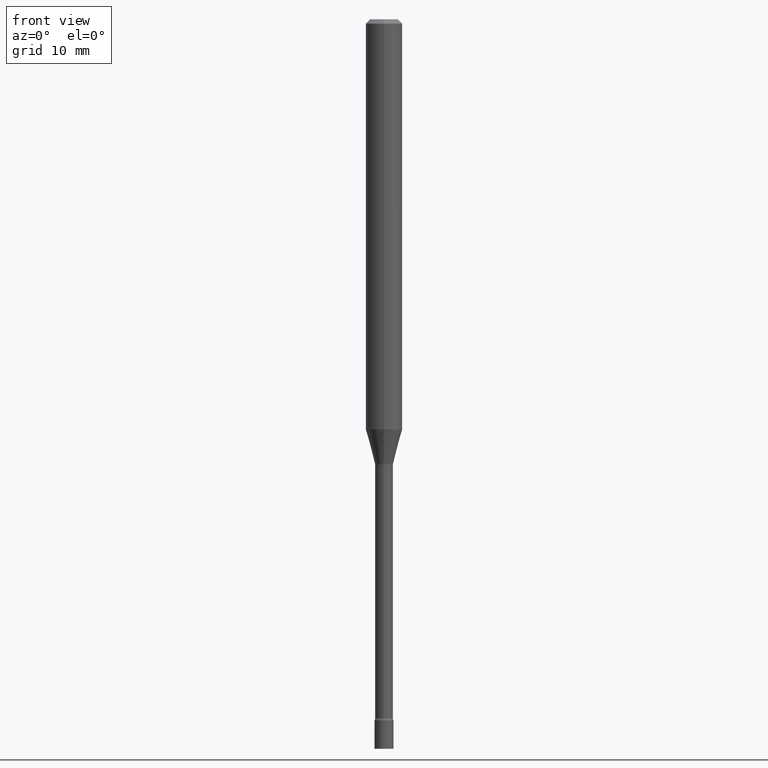
[diagram: clean part render]
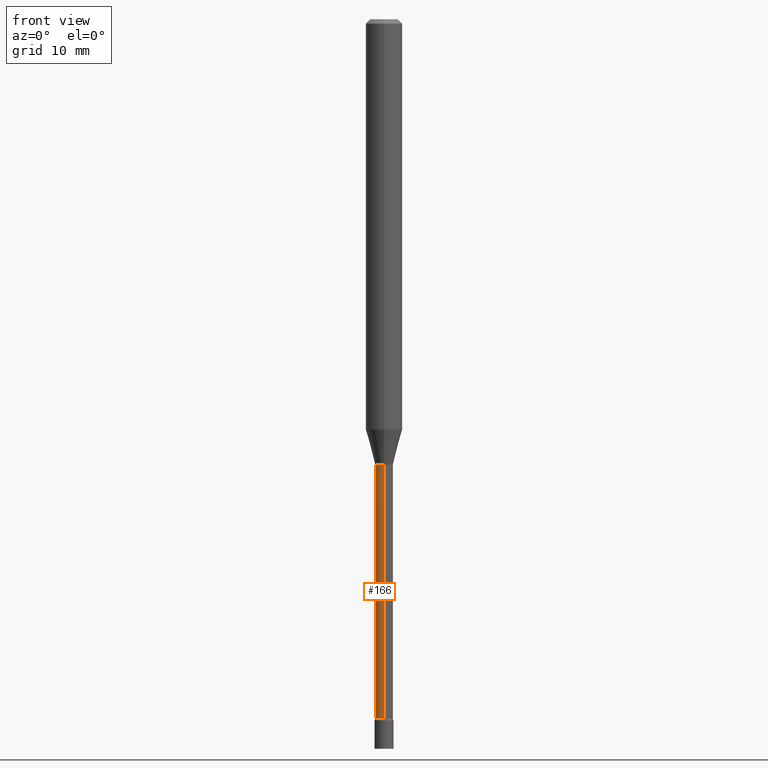
[diagram: same view with one face highlighted and labeled with its STEP entity id]
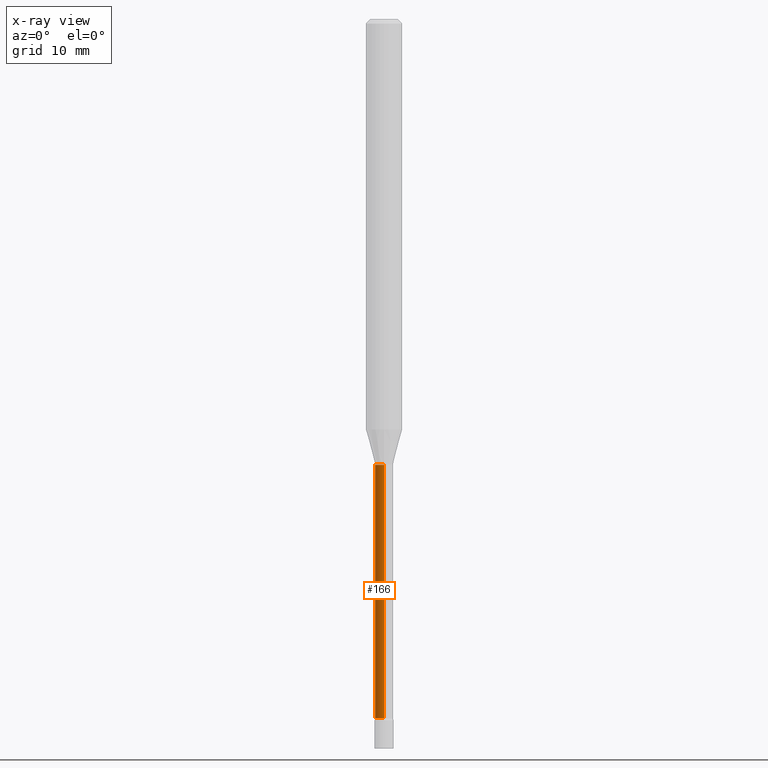
[diagram: x-ray of the same camera — body ghosted, the highlighted face saturated]
A machine part, front view. The second image highlights one B-rep face of the part: STEP entity #166.
The next image is the same camera in x-ray: the body ghosted, the highlighted face saturated — about 0% of this face is hidden behind the body in this view.
In plain terms, the highlighted cylindrical surface (edge-blend (fillet) strip) has radius 0.776 mm, axis along (-0, 0, 1).
Its self-contained STEP definition (entity closure, byte-faithful):
#25 = FACE_OUTER_BOUND ( 'NONE', #496, .T. ) ;
#50 = VERTEX_POINT ( 'NONE', #497 ) ;
#61 = LINE ( 'NONE', #358, #193 ) ;
#62 = VERTEX_POINT ( 'NONE', #350 ) ;
#77 = AXIS2_PLACEMENT_3D ( 'NONE', #304, #112, #115 ) ;
#79 = LINE ( 'NONE', #392, #474 ) ;
#91 = ORIENTED_EDGE ( 'NONE', *, *, #145, .F. ) ;
#112 = DIRECTION ( 'NONE',  ( -2.445462509514312655E-29, 3.491490356034149509E-15, 1.000000000000000000 ) ) ;
#115 = DIRECTION ( 'NONE',  ( -6.982962677686265922E-15, -1.000000000000000000, 0.000000000000000000 ) ) ;
#130 = VERTEX_POINT ( 'NONE', #316 ) ;
#134 = ORIENTED_EDGE ( 'NONE', *, *, #262, .F. ) ;
#136 = DIRECTION ( 'NONE',  ( -2.445462509514312655E-29, 3.491490356034149509E-15, 1.000000000000000000 ) ) ;
#145 = EDGE_CURVE ( 'NONE', #62, #50, #248, .T. ) ;
#153 = CARTESIAN_POINT ( 'NONE',  ( 3.734159595716336205E-29, -5.331417744337191746E-15, -1.526974787463811323 ) ) ;
#166 = ADVANCED_FACE ( 'NONE', ( #25 ), #320, .T. ) ;
#193 = VECTOR ( 'NONE', #348, 39.37007874015748143 ) ;
#194 = DIRECTION ( 'NONE',  ( -6.982962677686265133E-15, -1.000000000000000000, 0.000000000000000000 ) ) ;
#206 = AXIS2_PLACEMENT_3D ( 'NONE', #153, #394, #194 ) ;
#242 = CARTESIAN_POINT ( 'NONE',  ( 0.000000000000000000, 0.000000000000000000, 0.000000000000000000 ) ) ;
#247 = ORIENTED_EDGE ( 'NONE', *, *, #277, .T. ) ;
#248 = CIRCLE ( 'NONE', #206, 0.03055000000000000077 ) ;
#262 = EDGE_CURVE ( 'NONE', #375, #62, #79, .T. ) ;
#277 = EDGE_CURVE ( 'NONE', #130, #50, #61, .T. ) ;
#304 = CARTESIAN_POINT ( 'NONE',  ( 5.855914855353441094E-29, -8.360737555238315567E-15, -2.394604224178627838 ) ) ;
#310 = AXIS2_PLACEMENT_3D ( 'NONE', #242, #356, #479 ) ;
#316 = CARTESIAN_POINT ( 'NONE',  ( -2.133295098032572737E-16, -0.03055000000000842111, -2.394604224178627838 ) ) ;
#320 = CYLINDRICAL_SURFACE ( 'NONE', #310, 0.03055000000000002852 ) ;
#348 = DIRECTION ( 'NONE',  ( -2.445462509514312655E-29, 3.491490356034149509E-15, 1.000000000000000000 ) ) ;
#350 = CARTESIAN_POINT ( 'NONE',  ( 2.170708057747693824E-16, 0.03054999999999466823, -1.526974787463811323 ) ) ;
#356 = DIRECTION ( 'NONE',  ( -2.445462509514312655E-29, 3.491490356034149509E-15, 1.000000000000000000 ) ) ;
#358 = CARTESIAN_POINT ( 'NONE',  ( -2.133295098033156247E-16, -0.03055000000000002852, 1.066650303768433640E-16 ) ) ;
#375 = VERTEX_POINT ( 'NONE', #470 ) ;
#385 = EDGE_CURVE ( 'NONE', #375, #130, #445, .T. ) ;
#392 = CARTESIAN_POINT ( 'NONE',  ( 2.170708057747107848E-16, 0.03055000000000002852, -1.066650303768433640E-16 ) ) ;
#394 = DIRECTION ( 'NONE',  ( -2.445462509514312655E-29, 3.491490356034149509E-15, 1.000000000000000000 ) ) ;
#416 = ORIENTED_EDGE ( 'NONE', *, *, #385, .T. ) ;
#445 = CIRCLE ( 'NONE', #77, 0.03055000000000005975 ) ;
#470 = CARTESIAN_POINT ( 'NONE',  ( 2.239985974484304837E-16, 0.03054999999999169838, -2.394604224178627838 ) ) ;
#474 = VECTOR ( 'NONE', #136, 39.37007874015748143 ) ;
#479 = DIRECTION ( 'NONE',  ( -6.982962677686265922E-15, -1.000000000000000000, 3.491490356034149509E-15 ) ) ;
#496 = EDGE_LOOP ( 'NONE', ( #134, #416, #247, #91 ) ) ;
#497 = CARTESIAN_POINT ( 'NONE',  ( -2.133295098032780799E-16, -0.03055000000000532984, -1.526974787463811323 ) ) ;